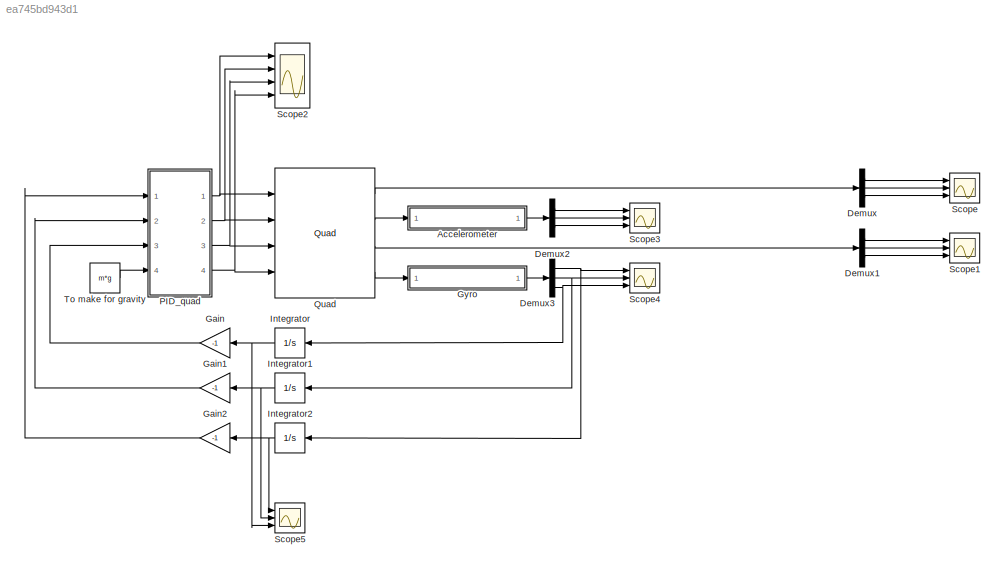
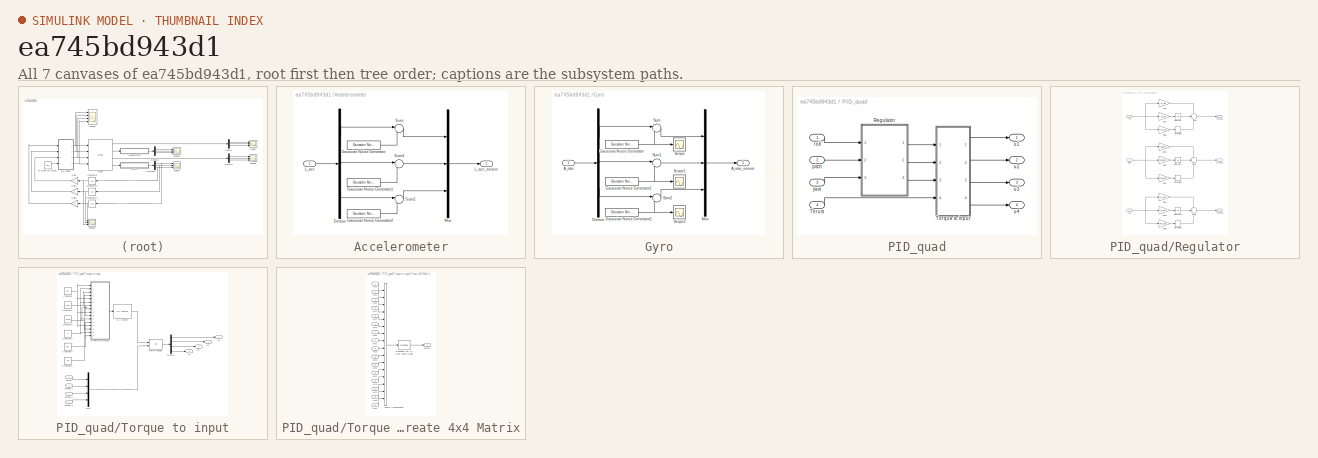
[diagram: thumbnail index - all 7 canvases of the model, root first then tree order]
MODEL slx_ea745bd943d1
KIND model
BLOCK [SubSystem] Accelerometer
  FunctionWithSeparateData = off
  MaskHideContents = off
  MinAlgLoopOccurrences = off
  Opaque = off
  Ports = [1, 1]
  PropExecContextOutsideSubsystem = off
  RTWSystemCode = Auto
  RequestExecContextInheritance = off
BLOCK [Demux] Accelerometer/Demux
  DisplayOption = bar
  Outputs = 3
  Ports = [1, 3]
BLOCK [Reference] Accelerometer/Gaussian Noise Generator  REF=commnoisgen2/Gaussian Noise
Generator
  Ports = [0, 1]
  SourceBlock = commnoisgen2/Gaussian Noise\nGenerator
  SourceType = Gaussian Noise Generator
  Ts = 0.001
  d = var_x
  frameBased = off
  m = 0
  orient = off
  outDataType = double
  s = 35
  sampPerFrame = 1
BLOCK [Reference] Accelerometer/Gaussian Noise Generator1  REF=commnoisgen2/Gaussian Noise
Generator
  Ports = [0, 1]
  SourceBlock = commnoisgen2/Gaussian Noise\nGenerator
  SourceType = Gaussian Noise Generator
  Ts = 0.001
  d = var_y
  frameBased = off
  m = 0
  orient = off
  outDataType = double
  s = 67
  sampPerFrame = 1
BLOCK [Reference] Accelerometer/Gaussian Noise Generator2  REF=commnoisgen2/Gaussian Noise
Generator
  Ports = [0, 1]
  SourceBlock = commnoisgen2/Gaussian Noise\nGenerator
  SourceType = Gaussian Noise Generator
  Ts = 0.001
  d = var_z
  frameBased = off
  m = 0
  orient = off
  outDataType = double
  s = 12
  sampPerFrame = 1
BLOCK [Inport] Accelerometer/L_acc
  IconDisplay = Port number
BLOCK [Outport] Accelerometer/L_acc_sensor
  IconDisplay = Port number
BLOCK [Mux] Accelerometer/Mux
  DisplayOption = bar
  Inputs = 3
  Ports = [3, 1]
BLOCK [Sum] Accelerometer/Sum
  IconShape = round
  InputSameDT = off
  Inputs = |++
  OutDataTypeStr = Inherit: Inherit via internal rule
  Ports = [2, 1]
  SaturateOnIntegerOverflow = off
BLOCK [Sum] Accelerometer/Sum1
  IconShape = round
  InputSameDT = off
  Inputs = |++
  OutDataTypeStr = Inherit: Inherit via internal rule
  Ports = [2, 1]
  SaturateOnIntegerOverflow = off
BLOCK [Sum] Accelerometer/Sum2
  IconShape = round
  InputSameDT = off
  Inputs = |++
  OutDataTypeStr = Inherit: Inherit via internal rule
  Ports = [2, 1]
  SaturateOnIntegerOverflow = off
BLOCK [Demux] Demux
  DisplayOption = bar
  Outputs = 3
  Ports = [1, 3]
BLOCK [Demux] Demux1
  DisplayOption = bar
  Outputs = 3
  Ports = [1, 3]
BLOCK [Demux] Demux2
  DisplayOption = bar
  Outputs = 3
  Ports = [1, 3]
BLOCK [Demux] Demux3
  DisplayOption = bar
  Outputs = 3
  Ports = [1, 3]
BLOCK [Gain] Gain
  Gain = -1
  OutDataTypeStr = Inherit: Inherit via internal rule
  ParamDataTypeStr = Inherit: Inherit via internal rule
  SaturateOnIntegerOverflow = off
BLOCK [Gain] Gain1
  Gain = -1
  OutDataTypeStr = Inherit: Inherit via internal rule
  ParamDataTypeStr = Inherit: Inherit via internal rule
  SaturateOnIntegerOverflow = off
BLOCK [Gain] Gain2
  Gain = -1
  OutDataTypeStr = Inherit: Inherit via internal rule
  ParamDataTypeStr = Inherit: Inherit via internal rule
  SaturateOnIntegerOverflow = off
BLOCK [SubSystem] Gyro
  FunctionWithSeparateData = off
  MaskHideContents = off
  MinAlgLoopOccurrences = off
  Opaque = off
  Ports = [1, 1]
  PropExecContextOutsideSubsystem = off
  RTWSystemCode = Auto
  RequestExecContextInheritance = off
BLOCK [Inport] Gyro/A_rate
  IconDisplay = Port number
BLOCK [Outport] Gyro/A_rate_sensor
  IconDisplay = Port number
BLOCK [Demux] Gyro/Demux
  DisplayOption = bar
  Outputs = 3
  Ports = [1, 3]
BLOCK [Reference] Gyro/Gaussian Noise Generator  REF=commnoisgen2/Gaussian Noise
Generator
  Ports = [0, 1]
  SourceBlock = commnoisgen2/Gaussian Noise\nGenerator
  SourceType = Gaussian Noise Generator
  Ts = 0.001
  d = var_roll
  frameBased = off
  m = 0
  orient = off
  outDataType = double
  s = 97
  sampPerFrame = 1
BLOCK [Reference] Gyro/Gaussian Noise Generator1  REF=commnoisgen2/Gaussian Noise
Generator
  Ports = [0, 1]
  SourceBlock = commnoisgen2/Gaussian Noise\nGenerator
  SourceType = Gaussian Noise Generator
  Ts = 0.001
  d = var_pitch
  frameBased = off
  m = 0
  orient = off
  outDataType = double
  s = 21
  sampPerFrame = 1
BLOCK [Reference] Gyro/Gaussian Noise Generator2  REF=commnoisgen2/Gaussian Noise
Generator
  Ports = [0, 1]
  SourceBlock = commnoisgen2/Gaussian Noise\nGenerator
  SourceType = Gaussian Noise Generator
  Ts = 0.001
  d = var_yaw
  frameBased = off
  m = 0
  orient = off
  outDataType = double
  s = 45
  sampPerFrame = 1
BLOCK [Mux] Gyro/Mux
  DisplayOption = bar
  Inputs = 3
  Ports = [3, 1]
BLOCK [Scope] Gyro/Scope
  DataFormat = StructureWithTime
  Floating = off
  NumInputPorts = 1
  Ports = [1]
  SampleTime = 0
  SaveName = ScopeData6
  ShowLegends = off
BLOCK [Scope] Gyro/Scope1
  DataFormat = StructureWithTime
  Floating = off
  NumInputPorts = 1
  Ports = [1]
  SampleTime = 0
  SaveName = ScopeData7
  ShowLegends = off
BLOCK [Scope] Gyro/Scope2
  DataFormat = StructureWithTime
  Floating = off
  NumInputPorts = 1
  Ports = [1]
  SampleTime = 0
  SaveName = ScopeData8
  ShowLegends = off
BLOCK [Sum] Gyro/Sum
  IconShape = round
  InputSameDT = off
  Inputs = |++
  OutDataTypeStr = Inherit: Inherit via internal rule
  Ports = [2, 1]
  SaturateOnIntegerOverflow = off
BLOCK [Sum] Gyro/Sum1
  IconShape = round
  InputSameDT = off
  Inputs = |++
  OutDataTypeStr = Inherit: Inherit via internal rule
  Ports = [2, 1]
  SaturateOnIntegerOverflow = off
BLOCK [Sum] Gyro/Sum2
  IconShape = round
  InputSameDT = off
  Inputs = |++
  OutDataTypeStr = Inherit: Inherit via internal rule
  Ports = [2, 1]
  SaturateOnIntegerOverflow = off
BLOCK [Integrator] Integrator
  InitialCondition = yaw0
  Ports = [1, 1]
BLOCK [Integrator] Integrator1
  InitialCondition = pitch0
  Ports = [1, 1]
BLOCK [Integrator] Integrator2
  InitialCondition = roll0
  Ports = [1, 1]
BLOCK [SubSystem] PID_quad
  FunctionWithSeparateData = off
  MaskHideContents = off
  MinAlgLoopOccurrences = off
  Opaque = off
  Ports = [4, 4]
  PropExecContextOutsideSubsystem = off
  RTWSystemCode = Auto
  RequestExecContextInheritance = off
BLOCK [Outport] PID_quad/ u1
  IconDisplay = Port number
BLOCK [Outport] PID_quad/ u2
  IconDisplay = Port number
  Port = 2
BLOCK [Outport] PID_quad/ u3
  IconDisplay = Port number
  Port = 3
BLOCK [Outport] PID_quad/ u4
  IconDisplay = Port number
  Port = 4
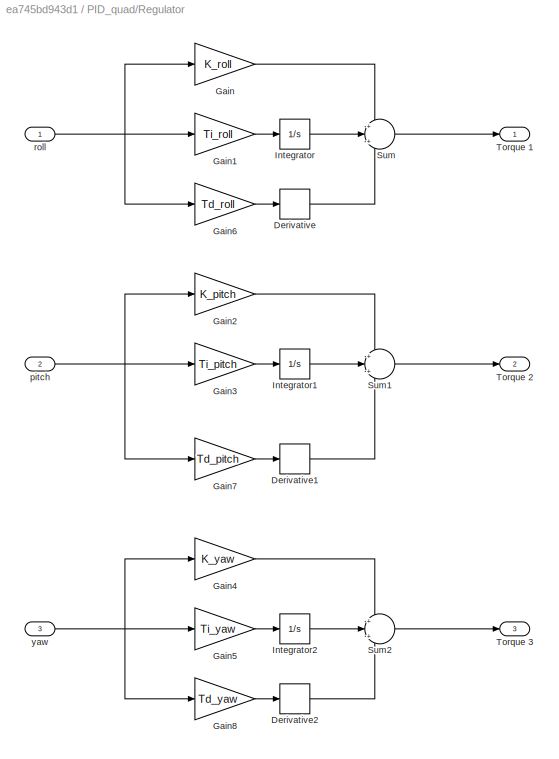
BLOCK [SubSystem] PID_quad/Regulator
  FunctionWithSeparateData = off
  MaskHideContents = off
  MinAlgLoopOccurrences = off
  Opaque = off
  Ports = [3, 3]
  PropExecContextOutsideSubsystem = off
  RTWSystemCode = Auto
  RequestExecContextInheritance = off
BLOCK [Outport] PID_quad/Regulator/ Torque 1
  IconDisplay = Port number
BLOCK [Outport] PID_quad/Regulator/ Torque 2
  IconDisplay = Port number
  Port = 2
BLOCK [Outport] PID_quad/Regulator/ Torque 3
  IconDisplay = Port number
  Port = 3
BLOCK [Derivative] PID_quad/Regulator/Derivative
BLOCK [Derivative] PID_quad/Regulator/Derivative1
BLOCK [Derivative] PID_quad/Regulator/Derivative2
BLOCK [Gain] PID_quad/Regulator/Gain
  Gain = K_roll
  OutDataTypeStr = Inherit: Inherit via internal rule
  ParamDataTypeStr = Inherit: Inherit via internal rule
  SaturateOnIntegerOverflow = off
BLOCK [Gain] PID_quad/Regulator/Gain1
  Gain = Ti_roll
  OutDataTypeStr = Inherit: Inherit via internal rule
  ParamDataTypeStr = Inherit: Inherit via internal rule
  SaturateOnIntegerOverflow = off
BLOCK [Gain] PID_quad/Regulator/Gain2
  Gain = K_pitch
  OutDataTypeStr = Inherit: Inherit via internal rule
  ParamDataTypeStr = Inherit: Inherit via internal rule
  SaturateOnIntegerOverflow = off
BLOCK [Gain] PID_quad/Regulator/Gain3
  Gain = Ti_pitch
  OutDataTypeStr = Inherit: Inherit via internal rule
  ParamDataTypeStr = Inherit: Inherit via internal rule
  SaturateOnIntegerOverflow = off
BLOCK [Gain] PID_quad/Regulator/Gain4
  Gain = K_yaw
  OutDataTypeStr = Inherit: Inherit via internal rule
  ParamDataTypeStr = Inherit: Inherit via internal rule
  SaturateOnIntegerOverflow = off
BLOCK [Gain] PID_quad/Regulator/Gain5
  Gain = Ti_yaw
  OutDataTypeStr = Inherit: Inherit via internal rule
  ParamDataTypeStr = Inherit: Inherit via internal rule
  SaturateOnIntegerOverflow = off
BLOCK [Gain] PID_quad/Regulator/Gain6
  Gain = Td_roll
  OutDataTypeStr = Inherit: Inherit via internal rule
  ParamDataTypeStr = Inherit: Inherit via internal rule
  SaturateOnIntegerOverflow = off
BLOCK [Gain] PID_quad/Regulator/Gain7
  Gain = Td_pitch
  OutDataTypeStr = Inherit: Inherit via internal rule
  ParamDataTypeStr = Inherit: Inherit via internal rule
  SaturateOnIntegerOverflow = off
BLOCK [Gain] PID_quad/Regulator/Gain8
  Gain = Td_yaw
  OutDataTypeStr = Inherit: Inherit via internal rule
  ParamDataTypeStr = Inherit: Inherit via internal rule
  SaturateOnIntegerOverflow = off
BLOCK [Integrator] PID_quad/Regulator/Integrator
  Ports = [1, 1]
BLOCK [Integrator] PID_quad/Regulator/Integrator1
  Ports = [1, 1]
BLOCK [Integrator] PID_quad/Regulator/Integrator2
  Ports = [1, 1]
BLOCK [Sum] PID_quad/Regulator/Sum
  IconShape = round
  InputSameDT = off
  Inputs = +|+|+
  OutDataTypeStr = Inherit: Inherit via internal rule
  Ports = [3, 1]
  SaturateOnIntegerOverflow = off
BLOCK [Sum] PID_quad/Regulator/Sum1
  IconShape = round
  InputSameDT = off
  Inputs = +|+|+
  OutDataTypeStr = Inherit: Inherit via internal rule
  Ports = [3, 1]
  SaturateOnIntegerOverflow = off
BLOCK [Sum] PID_quad/Regulator/Sum2
  IconShape = round
  InputSameDT = off
  Inputs = +|+|+
  OutDataTypeStr = Inherit: Inherit via internal rule
  Ports = [3, 1]
  SaturateOnIntegerOverflow = off
BLOCK [Inport] PID_quad/Regulator/pitch
  IconDisplay = Port number
  Port = 2
BLOCK [Inport] PID_quad/Regulator/roll
  IconDisplay = Port number
BLOCK [Inport] PID_quad/Regulator/yaw
  IconDisplay = Port number
  Port = 3
BLOCK [Inport] PID_quad/Thrust
  IconDisplay = Port number
  Port = 4
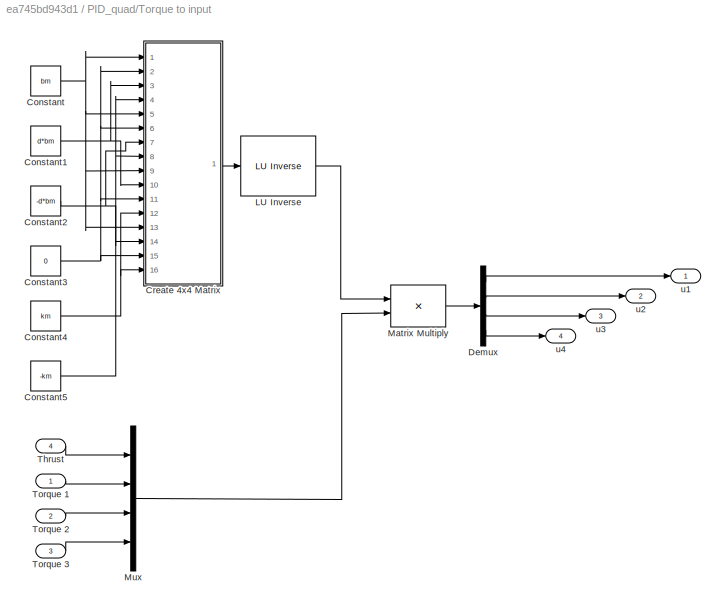
BLOCK [SubSystem] PID_quad/Torque to input
  FunctionWithSeparateData = off
  MaskHideContents = off
  MinAlgLoopOccurrences = off
  Opaque = off
  Ports = [4, 4]
  PropExecContextOutsideSubsystem = off
  RTWSystemCode = Auto
  RequestExecContextInheritance = off
BLOCK [Reference] PID_quad/Torque to input/ LU Inverse  REF=dspinverses/ LU Inverse
  Ports = [1, 1]
  SourceBlock = dspinverses/ LU Inverse
  SourceType = LU Inverse
BLOCK [Outport] PID_quad/Torque to input/ u1
  IconDisplay = Port number
BLOCK [Outport] PID_quad/Torque to input/ u2
  IconDisplay = Port number
  Port = 2
BLOCK [Outport] PID_quad/Torque to input/ u3
  IconDisplay = Port number
  Port = 3
BLOCK [Outport] PID_quad/Torque to input/ u4
  IconDisplay = Port number
  Port = 4
BLOCK [Constant] PID_quad/Torque to input/Constant
  Value = bm
BLOCK [Constant] PID_quad/Torque to input/Constant1
  Value = d*bm
BLOCK [Constant] PID_quad/Torque to input/Constant2
  Value = -d*bm
BLOCK [Constant] PID_quad/Torque to input/Constant3
  Value = 0
BLOCK [Constant] PID_quad/Torque to input/Constant4
  Value = km
BLOCK [Constant] PID_quad/Torque to input/Constant5
  Value = -km
BLOCK [SubSystem] PID_quad/Torque to input/Create 4x4 Matrix
  AncestorBlock = aerolibutil/Create 3x3 Matrix
  FunctionWithSeparateData = off
  MaskHideContents = off
  MinAlgLoopOccurrences = off
  Opaque = off
  Ports = [16, 1]
  PropExecContextOutsideSubsystem = off
  RTWSystemCode = Auto
  RequestExecContextInheritance = off
BLOCK [Inport] PID_quad/Torque to input/Create 4x4 Matrix/M11
  IconDisplay = Port number
  PortDimensions = 1
BLOCK [Inport] PID_quad/Torque to input/Create 4x4 Matrix/M12
  IconDisplay = Port number
  Port = 5
  PortDimensions = 1
BLOCK [Inport] PID_quad/Torque to input/Create 4x4 Matrix/M13
  IconDisplay = Port number
  Port = 9
  PortDimensions = 1
BLOCK [Inport] PID_quad/Torque to input/Create 4x4 Matrix/M14
  IconDisplay = Port number
  Port = 13
  PortDimensions = 1
BLOCK [Inport] PID_quad/Torque to input/Create 4x4 Matrix/M21
  IconDisplay = Port number
  Port = 2
  PortDimensions = 1
BLOCK [Inport] PID_quad/Torque to input/Create 4x4 Matrix/M22
  IconDisplay = Port number
  Port = 6
  PortDimensions = 1
BLOCK [Inport] PID_quad/Torque to input/Create 4x4 Matrix/M23
  IconDisplay = Port number
  Port = 10
  PortDimensions = 1
BLOCK [Inport] PID_quad/Torque to input/Create 4x4 Matrix/M24
  IconDisplay = Port number
  Port = 14
  PortDimensions = 1
BLOCK [Inport] PID_quad/Torque to input/Create 4x4 Matrix/M31
  IconDisplay = Port number
  Port = 3
  PortDimensions = 1
BLOCK [Inport] PID_quad/Torque to input/Create 4x4 Matrix/M32
  IconDisplay = Port number
  Port = 7
  PortDimensions = 1
BLOCK [Inport] PID_quad/Torque to input/Create 4x4 Matrix/M33
  IconDisplay = Port number
  Port = 11
  PortDimensions = 1
BLOCK [Inport] PID_quad/Torque to input/Create 4x4 Matrix/M34
  IconDisplay = Port number
  Port = 15
  PortDimensions = 1
BLOCK [Inport] PID_quad/Torque to input/Create 4x4 Matrix/M41
  IconDisplay = Port number
  Port = 4
  PortDimensions = 1
BLOCK [Inport] PID_quad/Torque to input/Create 4x4 Matrix/M42
  IconDisplay = Port number
  Port = 8
  PortDimensions = 1
BLOCK [Inport] PID_quad/Torque to input/Create 4x4 Matrix/M43
  IconDisplay = Port number
  Port = 12
  PortDimensions = 1
BLOCK [Inport] PID_quad/Torque to input/Create 4x4 Matrix/M44
  IconDisplay = Port number
  Port = 16
  PortDimensions = 1
BLOCK [Outport] PID_quad/Torque to input/Create 4x4 Matrix/Matrix
  IconDisplay = Port number
  PortDimensions = [4 4]
BLOCK [Reshape] PID_quad/Torque to input/Create 4x4 Matrix/Reshape (16) to [4x4] column-major
  OutputDimensionality = Customize
  OutputDimensions = [4,4]
  Ports = [1, 1]
BLOCK [Concatenate] PID_quad/Torque to input/Create 4x4 Matrix/Vector Concatenate
  NumInputs = 16
  Ports = [16, 1]
BLOCK [Demux] PID_quad/Torque to input/Demux
  DisplayOption = bar
  Ports = [1, 4]
BLOCK [Product] PID_quad/Torque to input/Matrix Multiply
  InputSameDT = off
  Multiplication = Matrix(*)
  OutDataTypeStr = Inherit: Inherit via internal rule
  Ports = [2, 1]
  RndMeth = Floor
  SaturateOnIntegerOverflow = off
BLOCK [Mux] PID_quad/Torque to input/Mux
  DisplayOption = bar
  Ports = [4, 1]
BLOCK [Inport] PID_quad/Torque to input/Thrust
  IconDisplay = Port number
  Port = 4
BLOCK [Inport] PID_quad/Torque to input/Torque 1
  IconDisplay = Port number
BLOCK [Inport] PID_quad/Torque to input/Torque 2
  IconDisplay = Port number
  Port = 2
BLOCK [Inport] PID_quad/Torque to input/Torque 3
  IconDisplay = Port number
  Port = 3
BLOCK [Inport] PID_quad/pitch
  IconDisplay = Port number
  Port = 2
BLOCK [Inport] PID_quad/roll
  IconDisplay = Port number
BLOCK [Inport] PID_quad/yaw
  IconDisplay = Port number
  Port = 3
BLOCK [Reference] Quad  REF=quad_lib/Quad  (lib defined in mdl_3e84e055d8f3)
  Ports = [4, 4]
  SourceBlock = quad_lib/Quad
  SourceType = SubSystem
BLOCK [Scope] Scope
  DataFormat = StructureWithTime
  Floating = off
  LimitDataPoints = off
  NumInputPorts = 3
  Ports = [3]
  SampleTime = 0
  ShowLegends = off
  YMax = 5~5~5
  YMin = -5~-5~-5
  ZoomMode = xonly
BLOCK [Scope] Scope1
  DataFormat = StructureWithTime
  Floating = off
  LimitDataPoints = off
  NumInputPorts = 3
  Ports = [3]
  SampleTime = 0
  SaveName = ScopeData1
  ShowLegends = off
  TimeRange = 100
  YMax = 4~2~4
  YMin = -4~-2~-4
  ZoomMode = yonly
BLOCK [Scope] Scope2
  DataFormat = StructureWithTime
  Floating = off
  LimitDataPoints = off
  NumInputPorts = 4
  Ports = [4]
  SampleTime = 0
  SaveName = ScopeData2
  ShowLegends = off
  TimeRange = 10
  YMax = 5000000000000~5000000000000~10000000000000~10000000000000
  YMin = -10000000000000~-10000000000000~-5000000000000~-5000000000000
  ZoomMode = yonly
BLOCK [Scope] Scope3
  DataFormat = StructureWithTime
  Floating = off
  LimitDataPoints = off
  NumInputPorts = 3
  Ports = [3]
  SampleTime = 0
  SaveName = ScopeData3
  ShowLegends = off
  YMax = 5~5~5
  YMin = -5~-5~-5
BLOCK [Scope] Scope4
  DataFormat = StructureWithTime
  Floating = off
  LimitDataPoints = off
  NumInputPorts = 3
  Ports = [3]
  SampleTime = 0
  SaveName = ScopeData4
  ShowLegends = off
  YMax = 5~5~5
  YMin = -5~-5~-5
  ZoomMode = yonly
BLOCK [Scope] Scope5
  DataFormat = StructureWithTime
  Floating = off
  LimitDataPoints = off
  NumInputPorts = 3
  Ports = [3]
  SampleTime = 0
  SaveName = ScopeData5
  ShowLegends = off
  TimeRange = 100
  YMax = 4~2~4
  YMin = -4~-2~-4
  ZoomMode = xonly
BLOCK [Constant] To make for gravity
  Value = m*g
LINE Accelerometer/Demux:1 -> Accelerometer/Sum:1
LINE Accelerometer/Demux:2 -> Accelerometer/Sum1:1
LINE Accelerometer/Demux:3 -> Accelerometer/Sum2:1
LINE Accelerometer/Gaussian Noise Generator1:1 -> Accelerometer/Sum1:2
LINE Accelerometer/Gaussian Noise Generator2:1 -> Accelerometer/Sum2:2
LINE Accelerometer/Gaussian Noise Generator:1 -> Accelerometer/Sum:2
LINE Accelerometer/L_acc:1 -> Accelerometer/Demux:1
LINE Accelerometer/Mux:1 -> Accelerometer/L_acc_sensor:1
LINE Accelerometer/Sum1:1 -> Accelerometer/Mux:2
LINE Accelerometer/Sum2:1 -> Accelerometer/Mux:3
LINE Accelerometer/Sum:1 -> Accelerometer/Mux:1
LINE Accelerometer:1 -> Demux2:1
LINE Demux1:1 -> Scope1:1
LINE Demux1:2 -> Scope1:2
LINE Demux1:3 -> Scope1:3
LINE Demux2:1 -> Scope3:1
LINE Demux2:2 -> Scope3:2
LINE Demux2:3 -> Scope3:3
NET Demux3:1 -> Integrator2:1, Scope4:1
NET Demux3:2 -> Integrator1:1, Scope4:2
NET Demux3:3 -> Integrator:1, Scope4:3
LINE Demux:1 -> Scope:1
LINE Demux:2 -> Scope:2
LINE Demux:3 -> Scope:3
LINE Gain1:1 -> PID_quad:2
LINE Gain2:1 -> PID_quad:1
LINE Gain:1 -> PID_quad:3
LINE Gyro/A_rate:1 -> Gyro/Demux:1
LINE Gyro/Demux:1 -> Gyro/Sum:1
LINE Gyro/Demux:2 -> Gyro/Sum1:1
LINE Gyro/Demux:3 -> Gyro/Sum2:1
NET Gyro/Gaussian Noise Generator1:1 -> Gyro/Scope1:1, Gyro/Sum1:2
NET Gyro/Gaussian Noise Generator2:1 -> Gyro/Scope2:1, Gyro/Sum2:2
NET Gyro/Gaussian Noise Generator:1 -> Gyro/Scope:1, Gyro/Sum:2
LINE Gyro/Mux:1 -> Gyro/A_rate_sensor:1
LINE Gyro/Sum1:1 -> Gyro/Mux:2
LINE Gyro/Sum2:1 -> Gyro/Mux:3
LINE Gyro/Sum:1 -> Gyro/Mux:1
LINE Gyro:1 -> Demux3:1
NET Integrator1:1 -> Gain1:1, Scope5:2
NET Integrator2:1 -> Gain2:1, Scope5:1
NET Integrator:1 -> Gain:1, Scope5:3
LINE PID_quad/Regulator/Derivative1:1 -> PID_quad/Regulator/Sum1:3
LINE PID_quad/Regulator/Derivative2:1 -> PID_quad/Regulator/Sum2:3
LINE PID_quad/Regulator/Derivative:1 -> PID_quad/Regulator/Sum:3
LINE PID_quad/Regulator/Gain1:1 -> PID_quad/Regulator/Integrator:1
LINE PID_quad/Regulator/Gain2:1 -> PID_quad/Regulator/Sum1:1
LINE PID_quad/Regulator/Gain3:1 -> PID_quad/Regulator/Integrator1:1
LINE PID_quad/Regulator/Gain4:1 -> PID_quad/Regulator/Sum2:1
LINE PID_quad/Regulator/Gain5:1 -> PID_quad/Regulator/Integrator2:1
LINE PID_quad/Regulator/Gain6:1 -> PID_quad/Regulator/Derivative:1
LINE PID_quad/Regulator/Gain7:1 -> PID_quad/Regulator/Derivative1:1
LINE PID_quad/Regulator/Gain8:1 -> PID_quad/Regulator/Derivative2:1
LINE PID_quad/Regulator/Gain:1 -> PID_quad/Regulator/Sum:1
LINE PID_quad/Regulator/Integrator1:1 -> PID_quad/Regulator/Sum1:2
LINE PID_quad/Regulator/Integrator2:1 -> PID_quad/Regulator/Sum2:2
LINE PID_quad/Regulator/Integrator:1 -> PID_quad/Regulator/Sum:2
LINE PID_quad/Regulator/Sum1:1 -> PID_quad/Regulator/ Torque 2:1
LINE PID_quad/Regulator/Sum2:1 -> PID_quad/Regulator/ Torque 3:1
LINE PID_quad/Regulator/Sum:1 -> PID_quad/Regulator/ Torque 1:1
NET PID_quad/Regulator/pitch:1 -> PID_quad/Regulator/Gain2:1, PID_quad/Regulator/Gain3:1, PID_quad/Regulator/Gain7:1
NET PID_quad/Regulator/roll:1 -> PID_quad/Regulator/Gain1:1, PID_quad/Regulator/Gain6:1, PID_quad/Regulator/Gain:1
NET PID_quad/Regulator/yaw:1 -> PID_quad/Regulator/Gain4:1, PID_quad/Regulator/Gain5:1, PID_quad/Regulator/Gain8:1
LINE PID_quad/Regulator:1 -> PID_quad/Torque to input:1
LINE PID_quad/Regulator:2 -> PID_quad/Torque to input:2
LINE PID_quad/Regulator:3 -> PID_quad/Torque to input:3
LINE PID_quad/Thrust:1 -> PID_quad/Torque to input:4
LINE PID_quad/Torque to input/ LU Inverse:1 -> PID_quad/Torque to input/Matrix Multiply:1
NET PID_quad/Torque to input/Constant1:1 -> PID_quad/Torque to input/Create 4x4 Matrix:10, PID_quad/Torque to input/Create 4x4 Matrix:3
NET PID_quad/Torque to input/Constant2:1 -> PID_quad/Torque to input/Create 4x4 Matrix:14, PID_quad/Torque to input/Create 4x4 Matrix:7
NET PID_quad/Torque to input/Constant3:1 -> PID_quad/Torque to input/Create 4x4 Matrix:11, PID_quad/Torque to input/Create 4x4 Matrix:15, PID_quad/Torque to input/Create 4x4 Matrix:2, PID_quad/Torque to input/Create 4x4 Matrix:6
NET PID_quad/Torque to input/Constant4:1 -> PID_quad/Torque to input/Create 4x4 Matrix:12, PID_quad/Torque to input/Create 4x4 Matrix:16
NET PID_quad/Torque to input/Constant5:1 -> PID_quad/Torque to input/Create 4x4 Matrix:4, PID_quad/Torque to input/Create 4x4 Matrix:8
NET PID_quad/Torque to input/Constant:1 -> PID_quad/Torque to input/Create 4x4 Matrix:1, PID_quad/Torque to input/Create 4x4 Matrix:13, PID_quad/Torque to input/Create 4x4 Matrix:5, PID_quad/Torque to input/Create 4x4 Matrix:9
LINE PID_quad/Torque to input/Create 4x4 Matrix:1 -> PID_quad/Torque to input/ LU Inverse:1
LINE PID_quad/Torque to input/Demux:1 -> PID_quad/Torque to input/ u1:1
LINE PID_quad/Torque to input/Demux:2 -> PID_quad/Torque to input/ u2:1
LINE PID_quad/Torque to input/Demux:3 -> PID_quad/Torque to input/ u3:1
LINE PID_quad/Torque to input/Demux:4 -> PID_quad/Torque to input/ u4:1
LINE PID_quad/Torque to input/Matrix Multiply:1 -> PID_quad/Torque to input/Demux:1
LINE PID_quad/Torque to input/Mux:1 -> PID_quad/Torque to input/Matrix Multiply:2
LINE PID_quad/Torque to input/Thrust:1 -> PID_quad/Torque to input/Mux:1
LINE PID_quad/Torque to input/Torque 1:1 -> PID_quad/Torque to input/Mux:2
LINE PID_quad/Torque to input/Torque 2:1 -> PID_quad/Torque to input/Mux:3
LINE PID_quad/Torque to input/Torque 3:1 -> PID_quad/Torque to input/Mux:4
LINE PID_quad/Torque to input:1 -> PID_quad/ u1:1
LINE PID_quad/Torque to input:2 -> PID_quad/ u2:1
LINE PID_quad/Torque to input:3 -> PID_quad/ u3:1
LINE PID_quad/Torque to input:4 -> PID_quad/ u4:1
LINE PID_quad/pitch:1 -> PID_quad/Regulator:2
LINE PID_quad/roll:1 -> PID_quad/Regulator:1
LINE PID_quad/yaw:1 -> PID_quad/Regulator:3
NET PID_quad:1 -> Quad:1, Scope2:1
NET PID_quad:2 -> Quad:2, Scope2:2
NET PID_quad:3 -> Quad:3, Scope2:3
NET PID_quad:4 -> Quad:4, Scope2:4
LINE Quad:1 -> Demux:1
LINE Quad:2 -> Accelerometer:1
LINE Quad:3 -> Demux1:1
LINE Quad:4 -> Gyro:1
LINE To make for gravity:1 -> PID_quad:4
note: NET lines group one-source signal fan-out (src -> all destinations, sorted); 1:1 wires keep LINE
